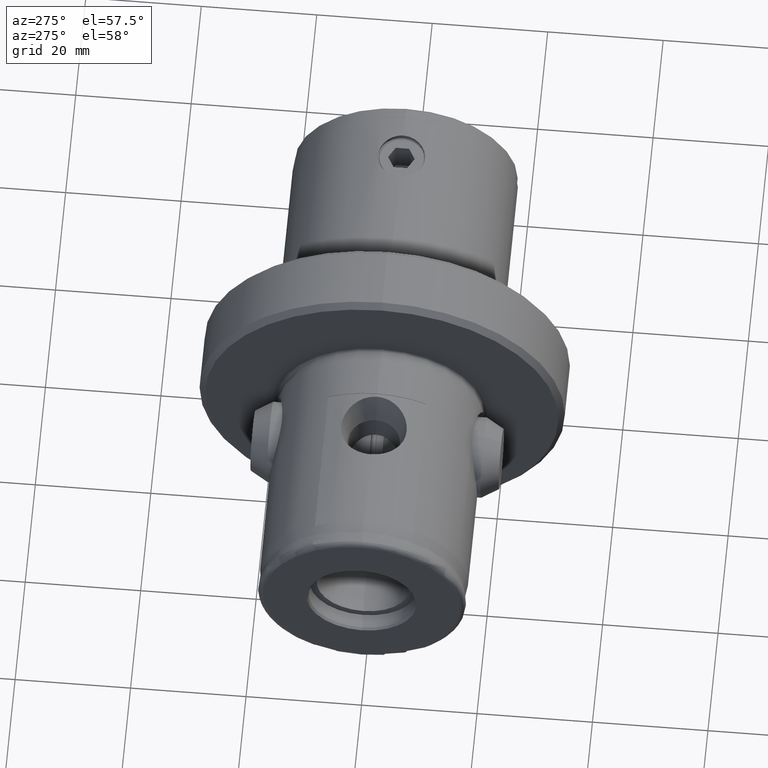
[diagram: clean part render]
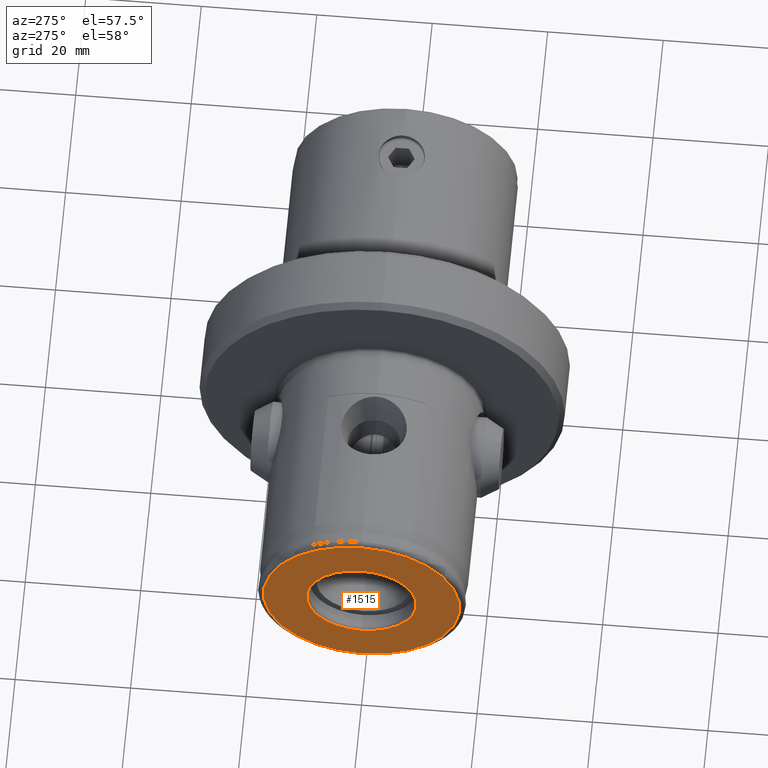
[diagram: same view with one face highlighted and labeled with its STEP entity id]
A machine part, auxiliary view. The second image highlights one B-rep face of the part: STEP entity #1515.
In plain terms, the highlighted planar face has unit normal (1, 0, 0).
Its self-contained STEP definition (entity closure, byte-faithful):
#47 = CIRCLE ( 'NONE', #5002, 16.99999999999999300 ) ;
#264 = DIRECTION ( 'NONE',  ( -1.000000000000000000, -0.0000000000000000000, -0.0000000000000000000 ) ) ;
#271 = AXIS2_PLACEMENT_3D ( 'NONE', #1366, #4160, #1754 ) ;
#302 = ORIENTED_EDGE ( 'NONE', *, *, #4400, .T. ) ;
#321 = DIRECTION ( 'NONE',  ( -1.000000000000000000, -0.0000000000000000000, -0.0000000000000000000 ) ) ;
#462 = CIRCLE ( 'NONE', #4731, 9.500000000000000000 ) ;
#481 = ORIENTED_EDGE ( 'NONE', *, *, #3665, .T. ) ;
#737 = VERTEX_POINT ( 'NONE', #2437 ) ;
#877 = ORIENTED_EDGE ( 'NONE', *, *, #2056, .F. ) ;
#1366 = CARTESIAN_POINT ( 'NONE',  ( 1.506265815201522500E-015, 0.0000000000000000000, 0.0000000000000000000 ) ) ;
#1391 = PLANE ( 'NONE',  #1917 ) ;
#1401 = CARTESIAN_POINT ( 'NONE',  ( -4.336808689942017700E-016, 0.0000000000000000000, 16.99999999999999300 ) ) ;
#1515 = ADVANCED_FACE ( 'NONE', ( #2141, #4273 ), #1391, .F. ) ;
#1754 = DIRECTION ( 'NONE',  ( 0.0000000000000000000, 0.0000000000000000000, 1.000000000000000000 ) ) ;
#1782 = DIRECTION ( 'NONE',  ( 0.0000000000000000000, 0.0000000000000000000, -1.000000000000000000 ) ) ;
#1912 = CARTESIAN_POINT ( 'NONE',  ( 1.506265815201522500E-015, 0.0000000000000000000, 9.500000000000000000 ) ) ;
#1917 = AXIS2_PLACEMENT_3D ( 'NONE', #3377, #4186, #1782 ) ;
#1933 = EDGE_LOOP ( 'NONE', ( #877, #3684 ) ) ;
#1937 = CARTESIAN_POINT ( 'NONE',  ( -4.336808689942017700E-016, 0.0000000000000000000, 0.0000000000000000000 ) ) ;
#2056 = EDGE_CURVE ( 'NONE', #2779, #3345, #3658, .T. ) ;
#2141 = FACE_BOUND ( 'NONE', #1933, .T. ) ;
#2298 = AXIS2_PLACEMENT_3D ( 'NONE', #2655, #264, #3065 ) ;
#2347 = DIRECTION ( 'NONE',  ( 0.0000000000000000000, 0.0000000000000000000, 1.000000000000000000 ) ) ;
#2437 = CARTESIAN_POINT ( 'NONE',  ( -4.336808689942017700E-016, 2.142201641675594700E-015, -16.99999999999999300 ) ) ;
#2499 = VERTEX_POINT ( 'NONE', #1401 ) ;
#2593 = EDGE_CURVE ( 'NONE', #3345, #2779, #462, .T. ) ;
#2639 = EDGE_LOOP ( 'NONE', ( #481, #302 ) ) ;
#2655 = CARTESIAN_POINT ( 'NONE',  ( -4.336808689942017700E-016, 0.0000000000000000000, 0.0000000000000000000 ) ) ;
#2720 = CARTESIAN_POINT ( 'NONE',  ( 1.506265815201522500E-015, 0.0000000000000000000, 0.0000000000000000000 ) ) ;
#2779 = VERTEX_POINT ( 'NONE', #1912 ) ;
#3065 = DIRECTION ( 'NONE',  ( 0.0000000000000000000, 0.0000000000000000000, 1.000000000000000000 ) ) ;
#3126 = DIRECTION ( 'NONE',  ( 0.0000000000000000000, 0.0000000000000000000, 1.000000000000000000 ) ) ;
#3345 = VERTEX_POINT ( 'NONE', #4825 ) ;
#3377 = CARTESIAN_POINT ( 'NONE',  ( 5.362924731036603600E-016, 16.99999999999999300, 0.0000000000000000000 ) ) ;
#3658 = CIRCLE ( 'NONE', #271, 9.500000000000000000 ) ;
#3665 = EDGE_CURVE ( 'NONE', #2499, #737, #47, .T. ) ;
#3684 = ORIENTED_EDGE ( 'NONE', *, *, #2593, .F. ) ;
#4160 = DIRECTION ( 'NONE',  ( -1.000000000000000000, -0.0000000000000000000, -0.0000000000000000000 ) ) ;
#4186 = DIRECTION ( 'NONE',  ( 1.000000000000000000, 0.0000000000000000000, 0.0000000000000000000 ) ) ;
#4273 = FACE_OUTER_BOUND ( 'NONE', #2639, .T. ) ;
#4400 = EDGE_CURVE ( 'NONE', #737, #2499, #4541, .T. ) ;
#4541 = CIRCLE ( 'NONE', #2298, 16.99999999999999300 ) ;
#4729 = DIRECTION ( 'NONE',  ( -1.000000000000000000, -0.0000000000000000000, -0.0000000000000000000 ) ) ;
#4731 = AXIS2_PLACEMENT_3D ( 'NONE', #2720, #321, #3126 ) ;
#4825 = CARTESIAN_POINT ( 'NONE',  ( 1.506265815201522500E-015, 1.163414459189985500E-015, -9.500000000000000000 ) ) ;
#5002 = AXIS2_PLACEMENT_3D ( 'NONE', #1937, #4729, #2347 ) ;